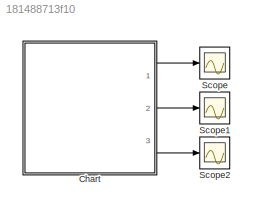
MODEL slx_181488713f10
KIND model
CONFIG AbsTol = auto
CONFIG EnableMultiTasking = off
CONFIG FixedStep = auto
CONFIG MaxStep = auto
CONFIG MinStep = auto
CONFIG RelTol = 1e-3
CONFIG SampleTimeConstraint = Unconstrained
CONFIG SolverName = VariableStepAuto
CONFIG StartTime = 0.0
CONFIG StopTime = 10.0
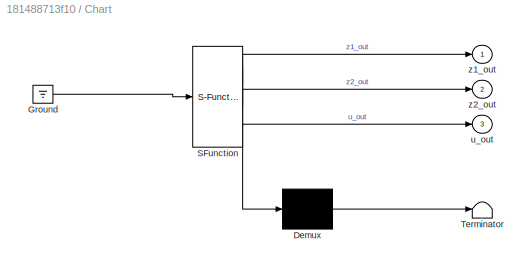
BLOCK [SubSystem] Chart
  ErrorFcn = Stateflow.Translate.translate
  PermitHierarchicalResolution = ExplicitOnly
  Ports = [0, 3]
  RequestExecContextInheritance = off
  SFBlockType = Chart
  TreatAsAtomicUnit = on
BLOCK [Demux] Chart/ Demux 
  Outputs = 1
  Ports = [1, 1]
BLOCK [Ground] Chart/ Ground 
BLOCK [S-Function] Chart/ SFunction 
  EnableBusSupport = on
  FunctionName = sf_sfun
  PortCounts = [1 4]
  Ports = [1, 4]
  SFcnIsStateOwnerBlock = off
  SFunctionDeploymentMode = off
  Tag = Stateflow S-Function 3
BLOCK [Terminator] Chart/ Terminator 
BLOCK [Outport] Chart/u_out
  Port = 3
BLOCK [Outport] Chart/z1_out
BLOCK [Outport] Chart/z2_out
  Port = 2
BLOCK [Scope] Scope
  Floating = off
  NumInputPorts = 1
  Ports = [1]
  ScopeSpecificationString = Simulink.scopes.TimeScopeBlockCfg('CurrentConfiguration', extmgr.ConfigurationSet(extmgr.Configuration('Core','General UI',true),extmgr.Configuration('Core','Source UI',true),extmgr.Configuration('Sources','WiredSimulink',true),extmgr.Configuration('Visuals','Time Domain',true,'SerializedDisplays',{struct('MinYLimReal','-2.6822','MaxYLimReal','0.29802','YLabelReal','','MinYLimMag','0.00000','MaxYL...<+1345ch>
BLOCK [Scope] Scope1
  Floating = off
  NumInputPorts = 1
  Ports = [1]
  ScopeSpecificationString = Simulink.scopes.TimeScopeBlockCfg('CurrentConfiguration', extmgr.ConfigurationSet(extmgr.Configuration('Core','General UI',true),extmgr.Configuration('Core','Source UI',true),extmgr.Configuration('Sources','WiredSimulink',true,'DataLoggingVariableName','ScopeData1'),extmgr.Configuration('Visuals','Time Domain',true,'SerializedDisplays',{struct('MinYLimReal','-0.00766','MaxYLimReal','0.06894','YLab...<+1359ch>
BLOCK [Scope] Scope2
  Floating = off
  NumInputPorts = 1
  Ports = [1]
  ScopeSpecificationString = Simulink.scopes.TimeScopeBlockCfg('CurrentConfiguration', extmgr.ConfigurationSet(extmgr.Configuration('Core','General UI',true),extmgr.Configuration('Core','Source UI',true),extmgr.Configuration('Sources','WiredSimulink',true,'DataLoggingVariableName','ScopeData2'),extmgr.Configuration('Visuals','Time Domain',true,'SerializedDisplays',{struct('MinYLimReal','-3.73112','MaxYLimReal','0.41457','YLab...<+1359ch>
LINE Chart:1 -> Scope:1
LINE Chart:2 -> Scope1:1
LINE Chart:3 -> Scope2:1
CHART Chart states=3 transitions=5
  STATE_LABEL 'Q2\ndu:\nz1_dot=-30*z1-20*z2-30*x1_eq-20*x2_eq+20+20*(1.432*z1+0.372*z2);\nz2_dot=0.05*z1+0.1*z2+0.05*x1_eq-0.07;\nz1_out=z1;\nz2_out=z2;\nu_out=1.432*z1+0.372*z2;'
  STATE_LABEL 'Q1\ndu:\nz1_dot=-30*z1-20*z2-30*x1_eq-20*x2_eq+20+20*(1.39*z1-0.329*z2);\nz2_dot=0.05*z1+-0.25*z2+0.05*x1_eq-0.25*x2_eq;\nz1_out=z1;\nz2_out=z2;\nu_out=1.39*z1-0.329*z2;'
  STATE_LABEL 'Q3\ndu:\nz1_dot=-30*z1-20*z2+20-30*x1_eq-20*x2_eq+20*(1.379*z1-0.484*z2);\nz2_dot=0.05*z1-0.2*z2+0.05*x1_eq+0.11;\nz1_out=z1;\nz2_out=z2;\nu_out=1.379*z1-0.484*z2;'
CHART  states=0 transitions=0
